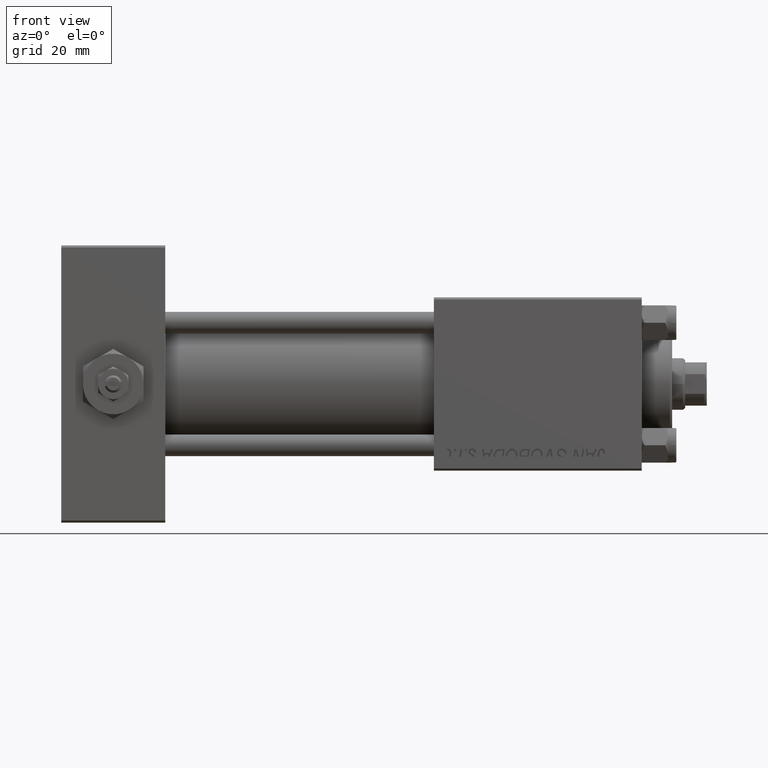
[diagram: clean part render]
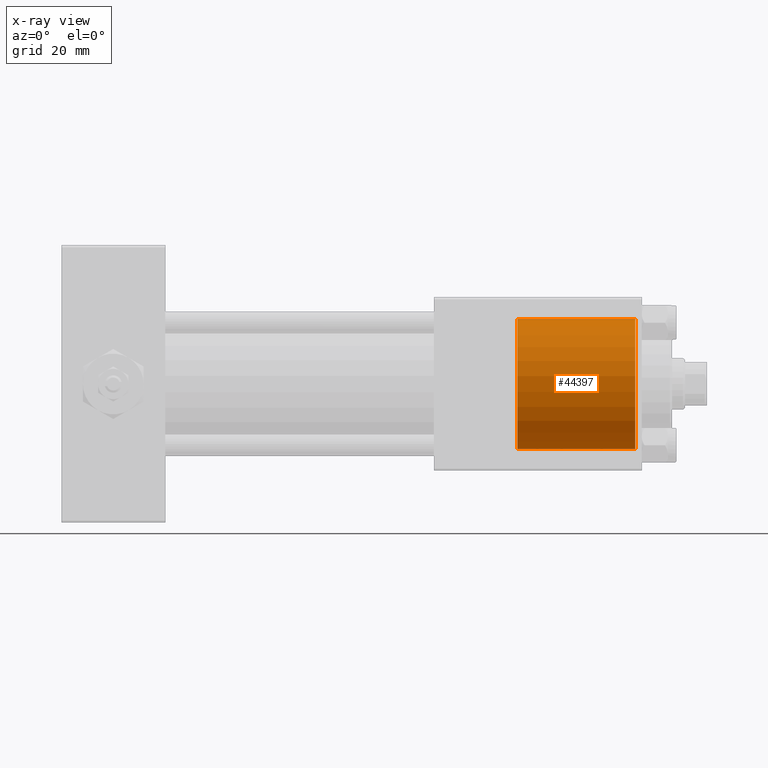
[diagram: x-ray — body ghosted, one internal face saturated and labeled with its STEP entity id]
A machine part, front view, then the same camera in x-ray: the body is ghosted and one INTERNAL B-rep face — a face not visible from any outside direction — is saturated and labeled: STEP entity #44397.
In plain terms, the highlighted cylindrical surface (partial cylindrical patch) has radius 15 mm, axis along (1, 0, 0).
Its self-contained STEP definition (entity closure, byte-faithful):
#1554 = EDGE_CURVE ( 'NONE', #5576, #18529, #20643, .T. ) ;
#1598 = CARTESIAN_POINT ( 'NONE',  ( 105.3000000000000114, 0.000000000000000000, 0.000000000000000000 ) ) ;
#2182 = AXIS2_PLACEMENT_3D ( 'NONE', #1598, #49358, #13614 ) ;
#2956 = DIRECTION ( 'NONE',  ( 1.000000000000000000, -0.000000000000000000, -0.000000000000000000 ) ) ;
#5576 = VERTEX_POINT ( 'NONE', #48779 ) ;
#7817 = DIRECTION ( 'NONE',  ( 1.000000000000000000, 0.000000000000000000, 0.000000000000000000 ) ) ;
#9974 = VERTEX_POINT ( 'NONE', #45846 ) ;
#10945 = CARTESIAN_POINT ( 'NONE',  ( 132.5000000000000000, 0.000000000000000000, -15.00000000000000000 ) ) ;
#11552 = CARTESIAN_POINT ( 'NONE',  ( 105.3000000000000114, 1.836970198721029589E-15, 15.00000000000000000 ) ) ;
#13193 = CARTESIAN_POINT ( 'NONE',  ( 105.3000000000000114, 0.000000000000000000, 0.000000000000000000 ) ) ;
#13614 = DIRECTION ( 'NONE',  ( 0.000000000000000000, 0.000000000000000000, -1.000000000000000000 ) ) ;
#17346 = FACE_OUTER_BOUND ( 'NONE', #46855, .T. ) ;
#17848 = CYLINDRICAL_SURFACE ( 'NONE', #51635, 15.00000000000000000 ) ;
#18529 = VERTEX_POINT ( 'NONE', #10945 ) ;
#20047 = CARTESIAN_POINT ( 'NONE',  ( 132.5000000000000000, 0.000000000000000000, 0.000000000000000000 ) ) ;
#20126 = VECTOR ( 'NONE', #46374, 1000.000000000000000 ) ;
#20499 = CIRCLE ( 'NONE', #2182, 15.00000000000000000 ) ;
#20643 = CIRCLE ( 'NONE', #21514, 15.00000000000000000 ) ;
#21178 = ORIENTED_EDGE ( 'NONE', *, *, #21891, .F. ) ;
#21514 = AXIS2_PLACEMENT_3D ( 'NONE', #20047, #7817, #39885 ) ;
#21891 = EDGE_CURVE ( 'NONE', #9974, #18529, #38527, .T. ) ;
#25851 = ORIENTED_EDGE ( 'NONE', *, *, #1554, .T. ) ;
#29350 = DIRECTION ( 'NONE',  ( 1.000000000000000000, -0.000000000000000000, -0.000000000000000000 ) ) ;
#33761 = DIRECTION ( 'NONE',  ( 0.000000000000000000, 0.000000000000000000, -1.000000000000000000 ) ) ;
#35079 = EDGE_CURVE ( 'NONE', #38814, #9974, #20499, .T. ) ;
#37082 = EDGE_CURVE ( 'NONE', #38814, #5576, #47562, .T. ) ;
#38527 = LINE ( 'NONE', #51546, #20126 ) ;
#38814 = VERTEX_POINT ( 'NONE', #47532 ) ;
#39220 = ORIENTED_EDGE ( 'NONE', *, *, #37082, .T. ) ;
#39885 = DIRECTION ( 'NONE',  ( 0.000000000000000000, 0.000000000000000000, 1.000000000000000000 ) ) ;
#42490 = ORIENTED_EDGE ( 'NONE', *, *, #35079, .F. ) ;
#43068 = VECTOR ( 'NONE', #2956, 1000.000000000000000 ) ;
#44397 = ADVANCED_FACE ( 'NONE', ( #17346 ), #17848, .F. ) ;
#45846 = CARTESIAN_POINT ( 'NONE',  ( 105.3000000000000114, 0.000000000000000000, -15.00000000000000000 ) ) ;
#46374 = DIRECTION ( 'NONE',  ( 1.000000000000000000, -0.000000000000000000, -0.000000000000000000 ) ) ;
#46855 = EDGE_LOOP ( 'NONE', ( #42490, #39220, #25851, #21178 ) ) ;
#47532 = CARTESIAN_POINT ( 'NONE',  ( 105.3000000000000114, 1.836970198721029589E-15, 15.00000000000000000 ) ) ;
#47562 = LINE ( 'NONE', #11552, #43068 ) ;
#48779 = CARTESIAN_POINT ( 'NONE',  ( 132.5000000000000000, 1.836970198721029589E-15, 15.00000000000000000 ) ) ;
#49358 = DIRECTION ( 'NONE',  ( 1.000000000000000000, 0.000000000000000000, 0.000000000000000000 ) ) ;
#51546 = CARTESIAN_POINT ( 'NONE',  ( 105.3000000000000114, 0.000000000000000000, -15.00000000000000000 ) ) ;
#51635 = AXIS2_PLACEMENT_3D ( 'NONE', #13193, #29350, #33761 ) ;